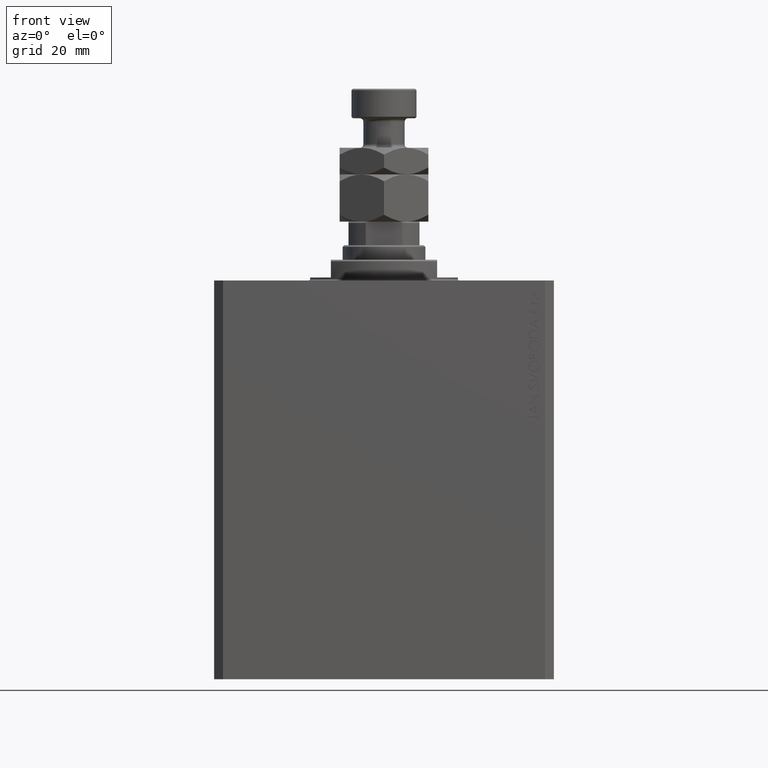
[diagram: clean part render]
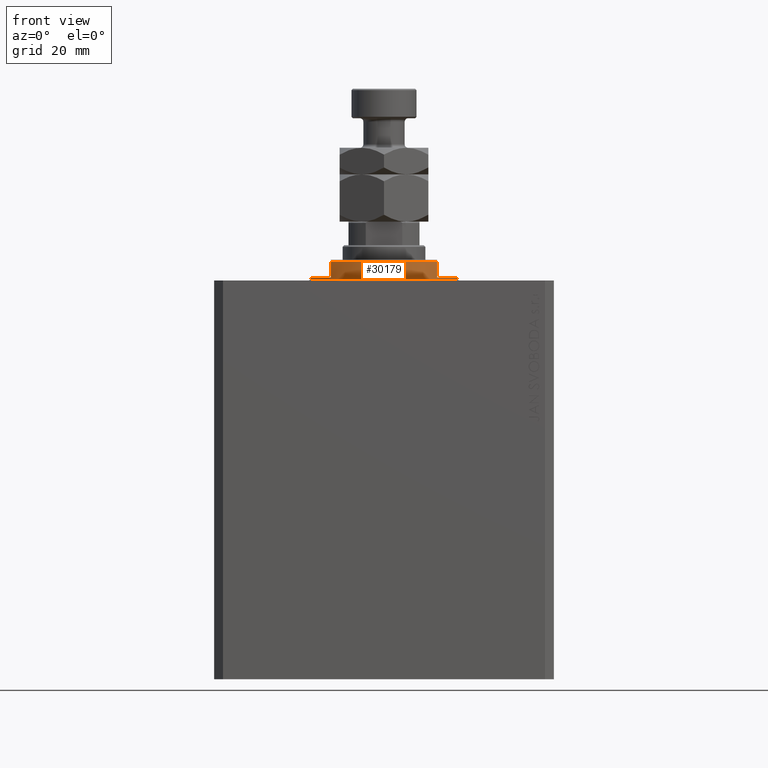
[diagram: same view with one face highlighted and labeled with its STEP entity id]
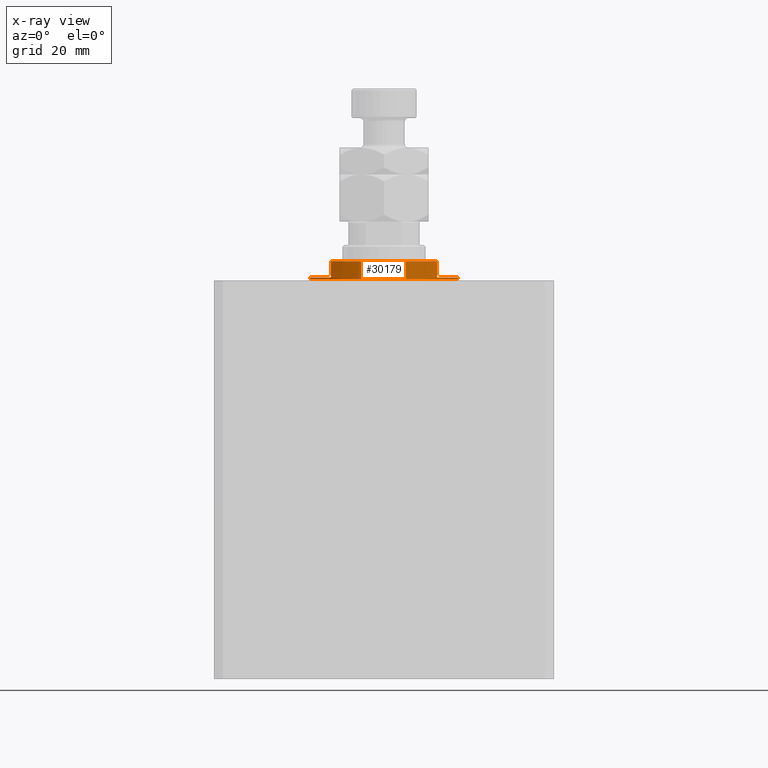
[diagram: x-ray of the same camera — body ghosted, the highlighted face saturated]
A machine part, front view. The second image highlights one B-rep face of the part: STEP entity #30179.
The next image is the same camera in x-ray: the body ghosted, the highlighted face saturated — about 0% of this face is hidden behind the body in this view.
In plain terms, the highlighted cylindrical surface (partial cylindrical patch) has radius 25 mm, axis along (0, 0, -1).
Its self-contained STEP definition (entity closure, byte-faithful):
#67 = DIRECTION ( 'NONE',  ( -0.000000000000000000, -0.000000000000000000, 1.000000000000000000 ) ) ;
#849 = CARTESIAN_POINT ( 'NONE',  ( 25.00000000000000000, 0.000000000000000000, -1.000000000000000000 ) ) ;
#3057 = DIRECTION ( 'NONE',  ( -0.000000000000000000, -0.000000000000000000, 1.000000000000000000 ) ) ;
#3804 = DIRECTION ( 'NONE',  ( -0.000000000000000000, -0.000000000000000000, -1.000000000000000000 ) ) ;
#3841 = VERTEX_POINT ( 'NONE', #26943 ) ;
#4205 = VECTOR ( 'NONE', #67, 1000.000000000000000 ) ;
#4867 = VECTOR ( 'NONE', #3057, 1000.000000000000000 ) ;
#5259 = VERTEX_POINT ( 'NONE', #9574 ) ;
#5881 = EDGE_CURVE ( 'NONE', #3841, #15967, #6289, .T. ) ;
#6289 = CIRCLE ( 'NONE', #22752, 25.00000000000000000 ) ;
#7164 = DIRECTION ( 'NONE',  ( 0.000000000000000000, 0.000000000000000000, -1.000000000000000000 ) ) ;
#7832 = ORIENTED_EDGE ( 'NONE', *, *, #39814, .F. ) ;
#8214 = LINE ( 'NONE', #25769, #43088 ) ;
#9527 = AXIS2_PLACEMENT_3D ( 'NONE', #28340, #24363, #10778 ) ;
#9574 = CARTESIAN_POINT ( 'NONE',  ( 25.00000000000000000, 0.000000000000000000, -0.4999999999999995559 ) ) ;
#9990 = ORIENTED_EDGE ( 'NONE', *, *, #34083, .T. ) ;
#10138 = CIRCLE ( 'NONE', #11642, 25.00000000000000000 ) ;
#10278 = DIRECTION ( 'NONE',  ( -1.000000000000000000, 0.000000000000000000, 0.000000000000000000 ) ) ;
#10778 = DIRECTION ( 'NONE',  ( -1.000000000000000000, 0.000000000000000000, 0.000000000000000000 ) ) ;
#10844 = CARTESIAN_POINT ( 'NONE',  ( 0.000000000000000000, 0.000000000000000000, -0.4999999999999995559 ) ) ;
#11017 = CARTESIAN_POINT ( 'NONE',  ( 25.00000000000000000, 0.000000000000000000, -7.000000000000000000 ) ) ;
#11642 = AXIS2_PLACEMENT_3D ( 'NONE', #41391, #38820, #10278 ) ;
#12577 = EDGE_LOOP ( 'NONE', ( #7832, #18914, #44577, #31185, #23775, #43104, #9990, #41559 ) ) ;
#12982 = CARTESIAN_POINT ( 'NONE',  ( -25.00000000000000000, 3.061616997868383043E-15, -0.4999999999999995559 ) ) ;
#14372 = EDGE_CURVE ( 'NONE', #20803, #39679, #10138, .T. ) ;
#15016 = VERTEX_POINT ( 'NONE', #12982 ) ;
#15419 = CARTESIAN_POINT ( 'NONE',  ( -25.00000000000000000, 3.061616997868383043E-15, -1.000000000000000000 ) ) ;
#15967 = VERTEX_POINT ( 'NONE', #15419 ) ;
#17300 = AXIS2_PLACEMENT_3D ( 'NONE', #10844, #3804, #25572 ) ;
#18298 = LINE ( 'NONE', #11017, #4867 ) ;
#18609 = DIRECTION ( 'NONE',  ( -0.000000000000000000, -0.000000000000000000, 1.000000000000000000 ) ) ;
#18839 = CARTESIAN_POINT ( 'NONE',  ( 0.000000000000000000, 0.000000000000000000, -7.000000000000000000 ) ) ;
#18914 = ORIENTED_EDGE ( 'NONE', *, *, #5881, .F. ) ;
#19146 = CARTESIAN_POINT ( 'NONE',  ( 18.00000000000000000, -17.34935157289747920, -6.499999999999971578 ) ) ;
#20803 = VERTEX_POINT ( 'NONE', #849 ) ;
#22752 = AXIS2_PLACEMENT_3D ( 'NONE', #36086, #32595, #43346 ) ;
#23775 = ORIENTED_EDGE ( 'NONE', *, *, #37783, .F. ) ;
#24363 = DIRECTION ( 'NONE',  ( 0.000000000000000000, 0.000000000000000000, 1.000000000000000000 ) ) ;
#25572 = DIRECTION ( 'NONE',  ( 1.000000000000000000, 0.000000000000000000, 0.000000000000000000 ) ) ;
#25769 = CARTESIAN_POINT ( 'NONE',  ( 18.00000000000000000, -17.34935157289747920, -7.000000000000000000 ) ) ;
#26943 = CARTESIAN_POINT ( 'NONE',  ( -18.00000000000000000, -17.34935157289747920, -1.000000000000000000 ) ) ;
#27908 = VERTEX_POINT ( 'NONE', #19146 ) ;
#28340 = CARTESIAN_POINT ( 'NONE',  ( 0.000000000000000000, 0.000000000000000000, -6.499999999999971578 ) ) ;
#28624 = CARTESIAN_POINT ( 'NONE',  ( -25.00000000000000000, 3.061616997868383043E-15, -7.000000000000000000 ) ) ;
#29342 = EDGE_CURVE ( 'NONE', #5259, #15016, #32923, .T. ) ;
#30179 = ADVANCED_FACE ( 'NONE', ( #33301 ), #39864, .T. ) ;
#31185 = ORIENTED_EDGE ( 'NONE', *, *, #43334, .T. ) ;
#31881 = VECTOR ( 'NONE', #7164, 1000.000000000000000 ) ;
#32595 = DIRECTION ( 'NONE',  ( 0.000000000000000000, 0.000000000000000000, -1.000000000000000000 ) ) ;
#32847 = DIRECTION ( 'NONE',  ( 1.000000000000000000, 0.000000000000000000, 0.000000000000000000 ) ) ;
#32923 = CIRCLE ( 'NONE', #17300, 25.00000000000000000 ) ;
#33301 = FACE_OUTER_BOUND ( 'NONE', #12577, .T. ) ;
#33477 = VERTEX_POINT ( 'NONE', #37586 ) ;
#34083 = EDGE_CURVE ( 'NONE', #20803, #5259, #18298, .T. ) ;
#36086 = CARTESIAN_POINT ( 'NONE',  ( 0.000000000000000000, 0.000000000000000000, -1.000000000000000000 ) ) ;
#37586 = CARTESIAN_POINT ( 'NONE',  ( -18.00000000000000000, -17.34935157289747920, -6.499999999999969802 ) ) ;
#37783 = EDGE_CURVE ( 'NONE', #39679, #27908, #8214, .T. ) ;
#37899 = LINE ( 'NONE', #38599, #31881 ) ;
#38599 = CARTESIAN_POINT ( 'NONE',  ( -18.00000000000000000, -17.34935157289747920, -7.000000000000000000 ) ) ;
#38820 = DIRECTION ( 'NONE',  ( 0.000000000000000000, 0.000000000000000000, -1.000000000000000000 ) ) ;
#39679 = VERTEX_POINT ( 'NONE', #44296 ) ;
#39700 = AXIS2_PLACEMENT_3D ( 'NONE', #18839, #18609, #32847 ) ;
#39814 = EDGE_CURVE ( 'NONE', #15967, #15016, #43964, .T. ) ;
#39864 = CYLINDRICAL_SURFACE ( 'NONE', #39700, 25.00000000000000000 ) ;
#40045 = DIRECTION ( 'NONE',  ( 0.000000000000000000, 0.000000000000000000, -1.000000000000000000 ) ) ;
#40911 = CIRCLE ( 'NONE', #9527, 25.00000000000000000 ) ;
#41383 = EDGE_CURVE ( 'NONE', #3841, #33477, #37899, .T. ) ;
#41391 = CARTESIAN_POINT ( 'NONE',  ( 0.000000000000000000, 0.000000000000000000, -1.000000000000000000 ) ) ;
#41559 = ORIENTED_EDGE ( 'NONE', *, *, #29342, .T. ) ;
#43088 = VECTOR ( 'NONE', #40045, 1000.000000000000000 ) ;
#43104 = ORIENTED_EDGE ( 'NONE', *, *, #14372, .F. ) ;
#43334 = EDGE_CURVE ( 'NONE', #33477, #27908, #40911, .T. ) ;
#43346 = DIRECTION ( 'NONE',  ( -1.000000000000000000, 0.000000000000000000, 0.000000000000000000 ) ) ;
#43964 = LINE ( 'NONE', #28624, #4205 ) ;
#44296 = CARTESIAN_POINT ( 'NONE',  ( 18.00000000000000000, -17.34935157289747920, -1.000000000000000000 ) ) ;
#44577 = ORIENTED_EDGE ( 'NONE', *, *, #41383, .T. ) ;